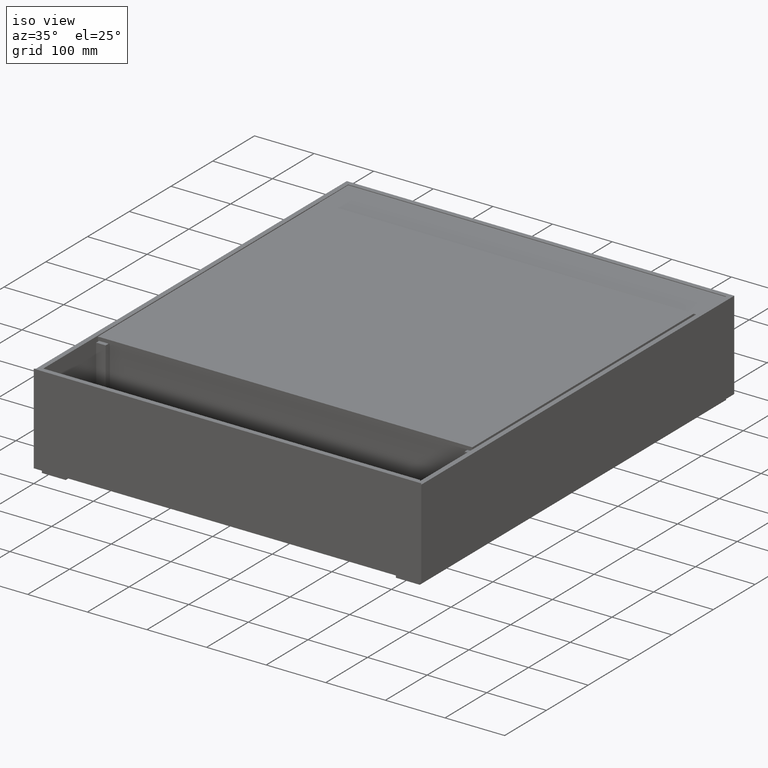
[diagram: clean part render]
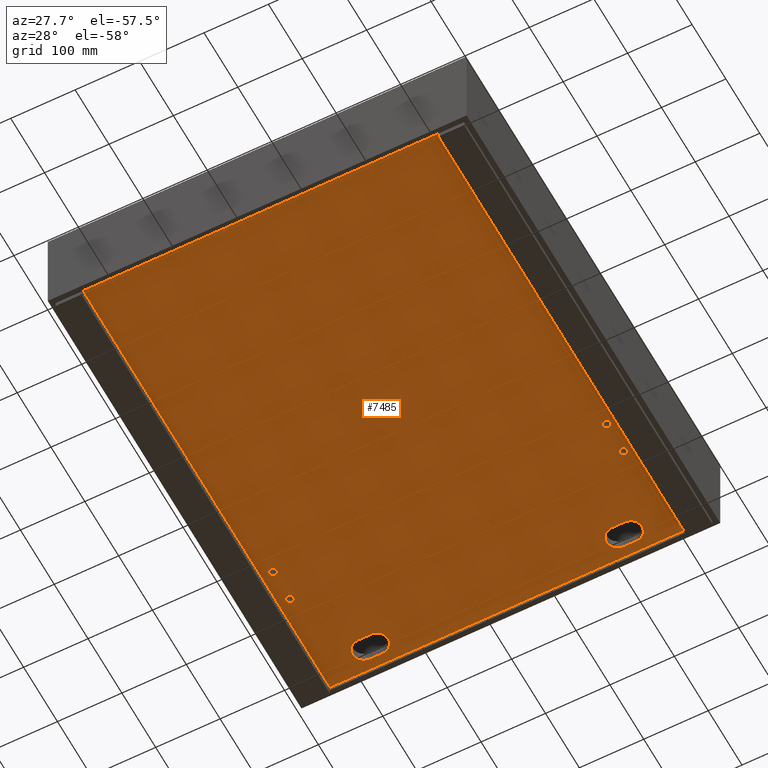
[diagram: tour spotlight — one face highlighted and labeled with its STEP entity id]
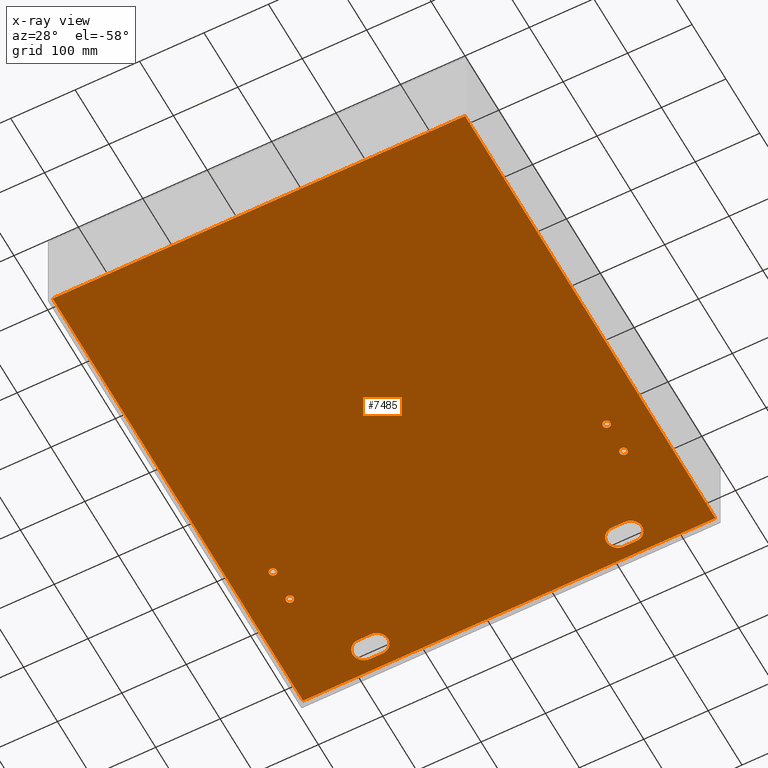
[diagram: x-ray of the same camera — body ghosted, this tour face saturated]
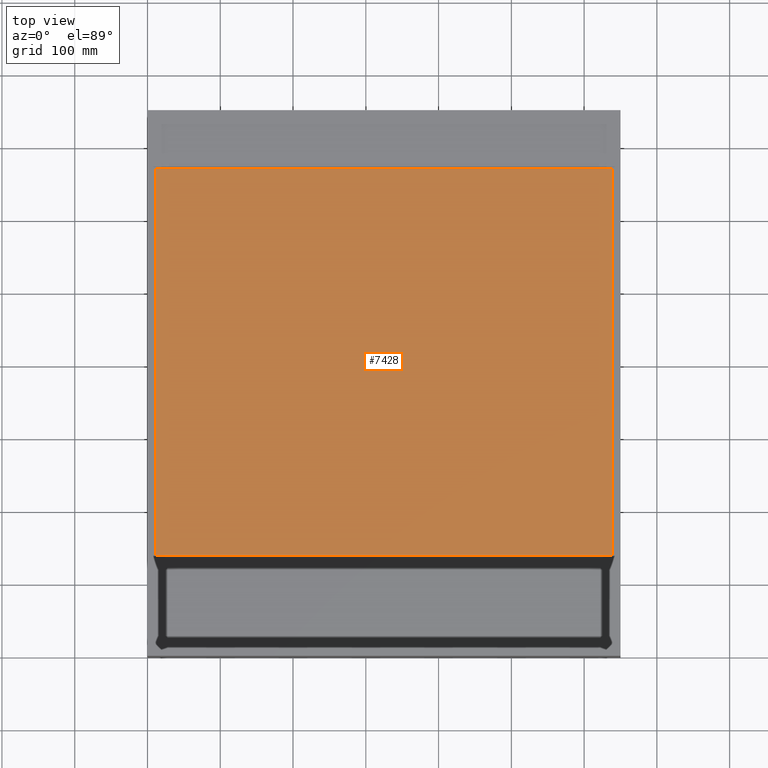
[diagram: tour spotlight — one face highlighted and labeled with its STEP entity id]
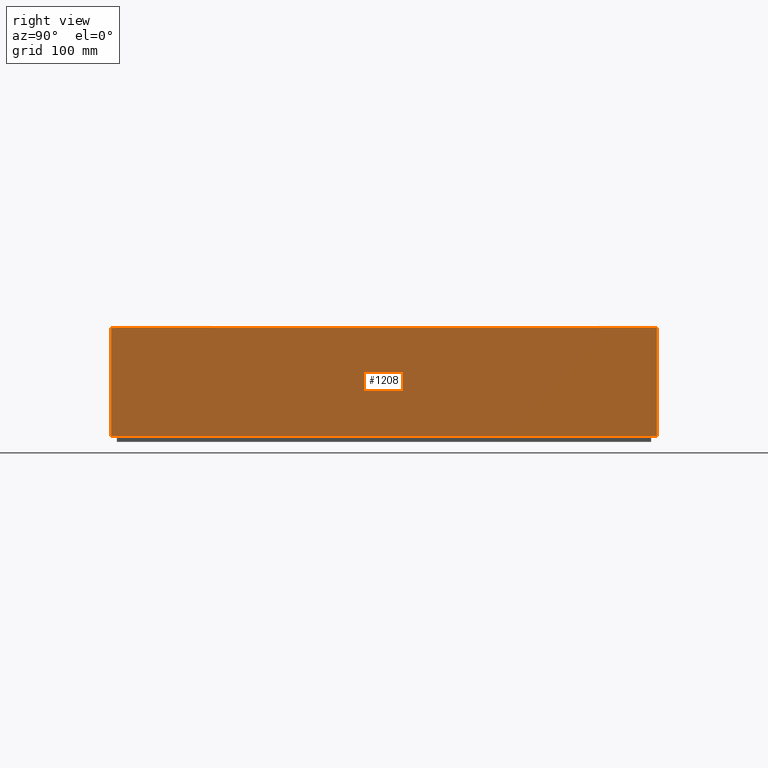
[diagram: tour spotlight — one face highlighted and labeled with its STEP entity id]
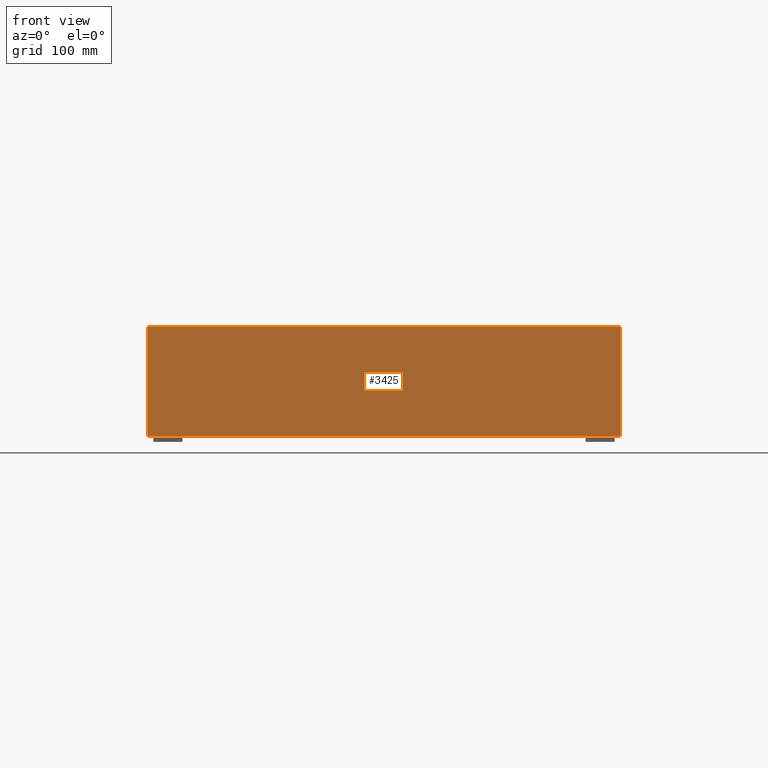
[diagram: tour spotlight — one face highlighted and labeled with its STEP entity id]
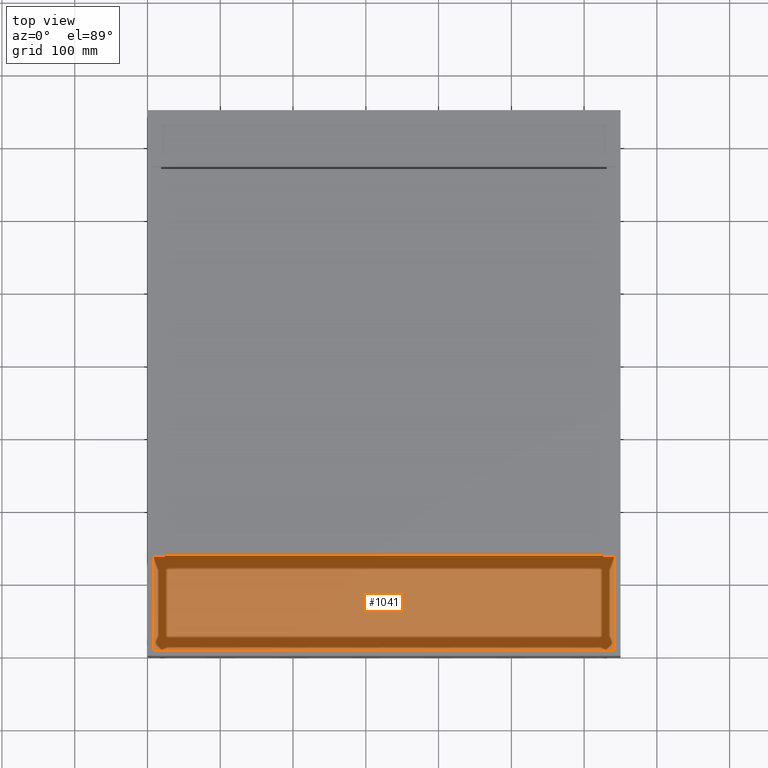
[diagram: tour spotlight — one face highlighted and labeled with its STEP entity id]
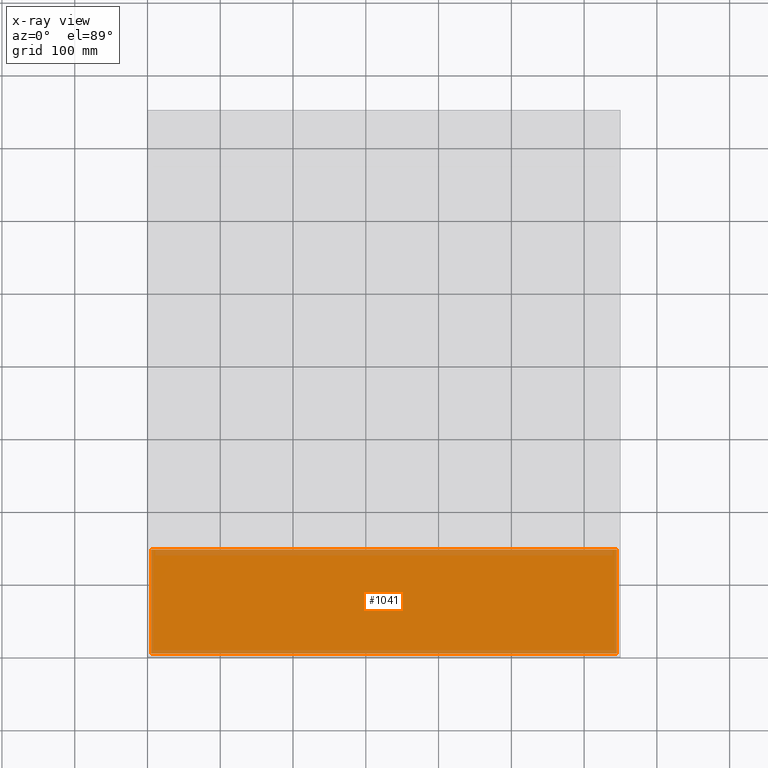
[diagram: x-ray of the same camera — body ghosted, this tour face saturated]
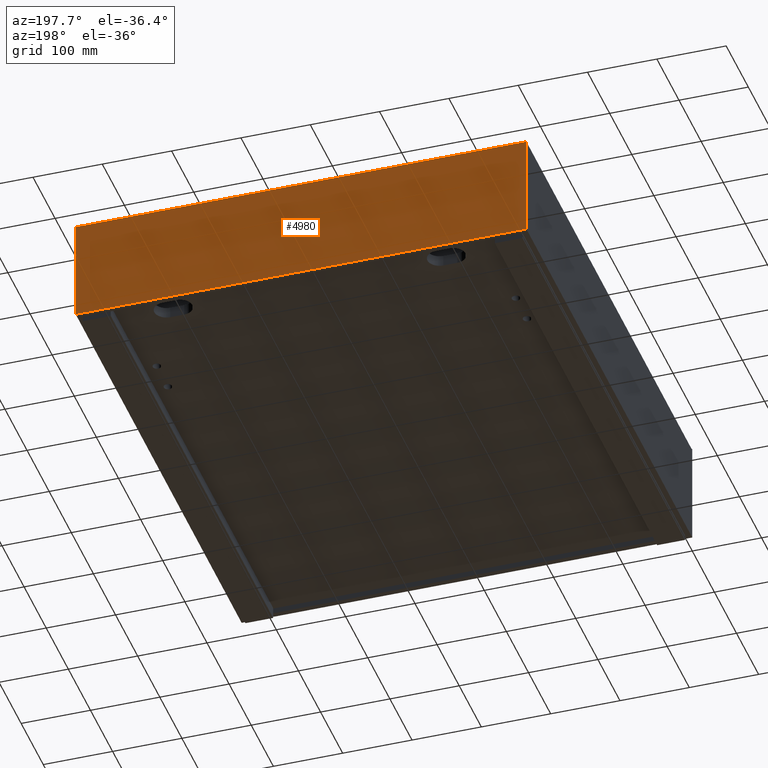
[diagram: tour spotlight — one face highlighted and labeled with its STEP entity id]
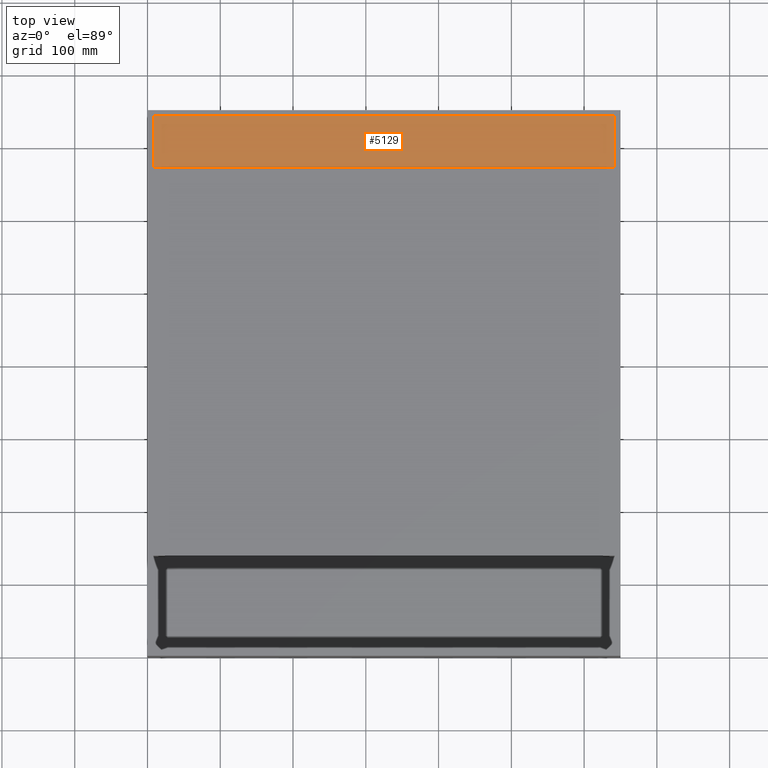
[diagram: tour spotlight — one face highlighted and labeled with its STEP entity id]
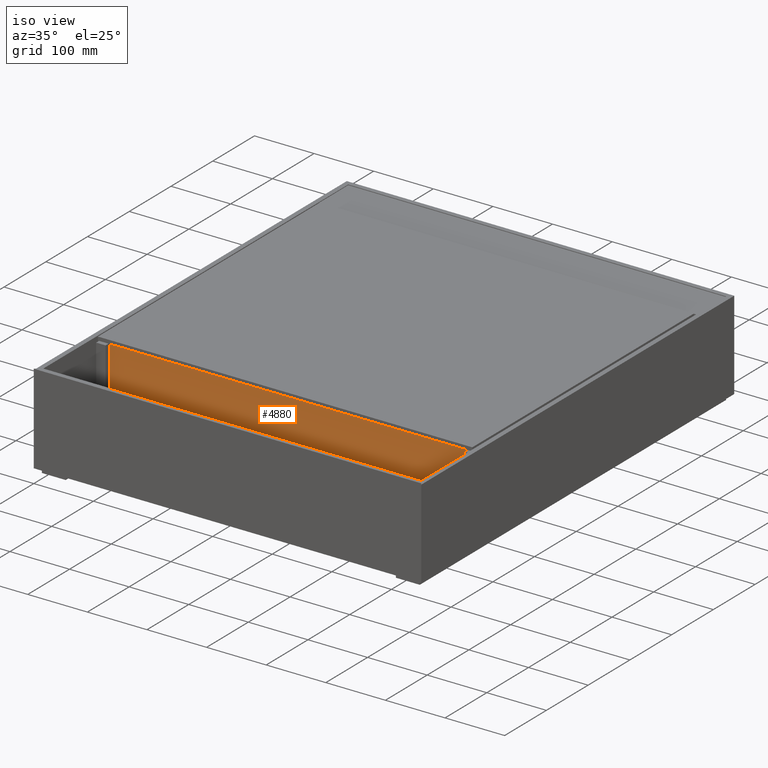
[diagram: tour spotlight — one face highlighted and labeled with its STEP entity id]
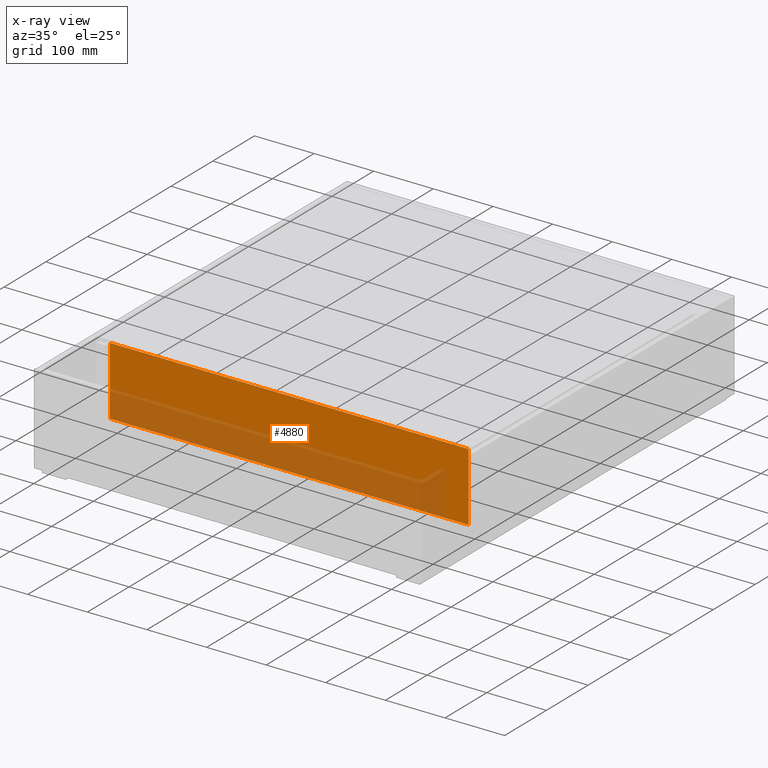
[diagram: x-ray of the same camera — body ghosted, this tour face saturated]
A machine part: a face-by-face anatomy tour. The part has 351 B-rep faces; the first image is the clean iso view, then the 8 largest visible faces are spotlighted one at a time (largest first), each with its STEP entity span.

Face 1 — auxiliary view, entity #7485. An x-ray twin of the same camera follows (body ghosted, this face saturated) — the face is partly hidden behind the body. In plain terms, the highlighted planar face has unit normal (0, -0, 1).
Definition (entity closure, byte-faithful):
#44 = ORIENTED_EDGE ( 'NONE', *, *, #5182, .F. ) ;
#77 = AXIS2_PLACEMENT_3D ( 'NONE', #5783, #9295, #1451 ) ;
#78 = EDGE_CURVE ( 'NONE', #2529, #2361, #1127, .T. ) ;
#87 = LINE ( 'NONE', #3577, #7786 ) ;
#129 = DIRECTION ( 'NONE',  ( -1.423362852083534639E-16, 0.0000000000000000000, -1.000000000000000000 ) ) ;
#136 = EDGE_CURVE ( 'NONE', #1546, #5809, #8702, .T. ) ;
#160 = DIRECTION ( 'NONE',  ( -1.000000000000000000, 0.0000000000000000000, 0.0000000000000000000 ) ) ;
#278 = AXIS2_PLACEMENT_3D ( 'NONE', #7294, #10805, #2951 ) ;
#286 = CARTESIAN_POINT ( 'NONE',  ( 118.0000000000001990, 692.4999000000001388, -141.0000000000002558 ) ) ;
#323 = CARTESIAN_POINT ( 'NONE',  ( 578.0000000000001137, 589.9999000000000251, -141.0000000000002274 ) ) ;
#463 = EDGE_CURVE ( 'NONE', #1731, #6567, #87, .T. ) ;
#559 = EDGE_LOOP ( 'NONE', ( #2628, #2859 ) ) ;
#638 = VERTEX_POINT ( 'NONE', #3907 ) ;
#775 = DIRECTION ( 'NONE',  ( 1.301042606982605074E-16, -0.0000000000000000000, 1.000000000000000000 ) ) ;
#776 = EDGE_CURVE ( 'NONE', #2073, #2334, #8329, .T. ) ;
#801 = ORIENTED_EDGE ( 'NONE', *, *, #3565, .F. ) ;
#825 = VERTEX_POINT ( 'NONE', #4317 ) ;
#878 = AXIS2_PLACEMENT_3D ( 'NONE', #5505, #9008, #1148 ) ;
#881 = ORIENTED_EDGE ( 'NONE', *, *, #3337, .F. ) ;
#882 = EDGE_CURVE ( 'NONE', #10199, #1731, #4848, .T. ) ;
#933 = CARTESIAN_POINT ( 'NONE',  ( 531.9999999999997726, 709.9999000000000251, -141.0000000000003126 ) ) ;
#968 = CARTESIAN_POINT ( 'NONE',  ( 590.0000000000001137, 539.9999000000000251, -141.0000000000002274 ) ) ;
#1081 = DIRECTION ( 'NONE',  ( 0.0000000000000000000, 0.0000000000000000000, -1.000000000000000000 ) ) ;
#1127 = LINE ( 'NONE', #4623, #9621 ) ;
#1148 = DIRECTION ( 'NONE',  ( -1.000000000000000000, 0.0000000000000000000, 0.0000000000000000000 ) ) ;
#1449 = EDGE_CURVE ( 'NONE', #2248, #7735, #10862, .T. ) ;
#1451 = DIRECTION ( 'NONE',  ( -1.000000000000000000, 0.0000000000000000000, 0.0000000000000000000 ) ) ;
#1538 = CARTESIAN_POINT ( 'NONE',  ( 138.0000000000001990, 692.4999000000000251, -141.0000000000002558 ) ) ;
#1546 = VERTEX_POINT ( 'NONE', #323 ) ;
#1572 = CARTESIAN_POINT ( 'NONE',  ( 66.00000000000004263, 539.9999000000000251, -141.0000000000002274 ) ) ;
#1602 = CARTESIAN_POINT ( 'NONE',  ( 5.000000000000021316, 1386.199868759761557, -141.0000000000002274 ) ) ;
#1615 = VERTEX_POINT ( 'NONE', #7472 ) ;
#1644 = FACE_OUTER_BOUND ( 'NONE', #6737, .T. ) ;
#1712 = ORIENTED_EDGE ( 'NONE', *, *, #136, .F. ) ;
#1714 = VERTEX_POINT ( 'NONE', #8795 ) ;
#1720 = EDGE_CURVE ( 'NONE', #6567, #9324, #9227, .T. ) ;
#1731 = VERTEX_POINT ( 'NONE', #3566 ) ;
#1810 = DIRECTION ( 'NONE',  ( -1.000000000000000000, -0.0000000000000000000, -0.0000000000000000000 ) ) ;
#1940 = DIRECTION ( 'NONE',  ( 1.000000000000000000, 0.0000000000000000000, 0.0000000000000000000 ) ) ;
#1948 = EDGE_CURVE ( 'NONE', #5809, #1546, #5019, .T. ) ;
#2030 = AXIS2_PLACEMENT_3D ( 'NONE', #10414, #2556, #6042 ) ;
#2046 = EDGE_LOOP ( 'NONE', ( #44, #801 ) ) ;
#2073 = VERTEX_POINT ( 'NONE', #6021 ) ;
#2131 = CARTESIAN_POINT ( 'NONE',  ( 118.0000000000001990, 727.4999000000001388, -141.0000000000002558 ) ) ;
#2165 = ORIENTED_EDGE ( 'NONE', *, *, #1948, .F. ) ;
#2181 = AXIS2_PLACEMENT_3D ( 'NONE', #8639, #775, #4272 ) ;
#2211 = VECTOR ( 'NONE', #2694, 1000.000000000000000 ) ;
#2248 = VERTEX_POINT ( 'NONE', #8986 ) ;
#2279 = DIRECTION ( 'NONE',  ( 0.0000000000000000000, 0.0000000000000000000, -1.000000000000000000 ) ) ;
#2334 = VERTEX_POINT ( 'NONE', #9161 ) ;
#2361 = VERTEX_POINT ( 'NONE', #10071 ) ;
#2499 = FACE_BOUND ( 'NONE', #9055, .T. ) ;
#2529 = VERTEX_POINT ( 'NONE', #8758 ) ;
#2534 = CIRCLE ( 'NONE', #8934, 6.000000000000005329 ) ;
#2556 = DIRECTION ( 'NONE',  ( -1.423362852083534639E-16, 0.0000000000000000000, -1.000000000000000000 ) ) ;
#2601 = CARTESIAN_POINT ( 'NONE',  ( 5.000000000000021316, 744.9999000000000251, -141.0000000000002274 ) ) ;
#2603 = DIRECTION ( 'NONE',  ( 0.0000000000000000000, 0.0000000000000000000, -1.000000000000000000 ) ) ;
#2628 = ORIENTED_EDGE ( 'NONE', *, *, #776, .F. ) ;
#2688 = EDGE_CURVE ( 'NONE', #8532, #1714, #5225, .T. ) ;
#2694 = DIRECTION ( 'NONE',  ( -1.000000000000000000, -0.0000000000000000000, 1.301042606982605321E-16 ) ) ;
#2697 = CARTESIAN_POINT ( 'NONE',  ( 118.0000000000001990, 709.9999000000000251, -141.0000000000002558 ) ) ;
#2859 = ORIENTED_EDGE ( 'NONE', *, *, #5349, .F. ) ;
#2951 = DIRECTION ( 'NONE',  ( 1.000000000000000000, 0.0000000000000000000, 0.0000000000000000000 ) ) ;
#2964 = DIRECTION ( 'NONE',  ( 0.0000000000000000000, 0.0000000000000000000, -1.000000000000000000 ) ) ;
#3089 = EDGE_CURVE ( 'NONE', #825, #2248, #9981, .T. ) ;
#3262 = CARTESIAN_POINT ( 'NONE',  ( 60.00000000000002842, 589.9999000000000251, -141.0000000000002274 ) ) ;
#3337 = EDGE_CURVE ( 'NONE', #1714, #825, #9993, .T. ) ;
#3340 = AXIS2_PLACEMENT_3D ( 'NONE', #8931, #1081, #4571 ) ;
#3355 = FACE_BOUND ( 'NONE', #8885, .T. ) ;
#3411 = ORIENTED_EDGE ( 'NONE', *, *, #9133, .F. ) ;
#3430 = ORIENTED_EDGE ( 'NONE', *, *, #8408, .F. ) ;
#3565 = EDGE_CURVE ( 'NONE', #10593, #5183, #4319, .T. ) ;
#3566 = CARTESIAN_POINT ( 'NONE',  ( 511.9999999999997726, 727.4999000000001388, -141.0000000000003126 ) ) ;
#3577 = CARTESIAN_POINT ( 'NONE',  ( 531.9999999999997726, 727.4999000000001388, -141.0000000000003126 ) ) ;
#3622 = DIRECTION ( 'NONE',  ( -1.000000000000000000, 0.0000000000000000000, 0.0000000000000000000 ) ) ;
#3686 = ORIENTED_EDGE ( 'NONE', *, *, #10656, .F. ) ;
#3809 = ORIENTED_EDGE ( 'NONE', *, *, #7051, .F. ) ;
#3907 = CARTESIAN_POINT ( 'NONE',  ( 511.9999999999997726, 692.4999000000000251, -141.0000000000003126 ) ) ;
#4010 = CARTESIAN_POINT ( 'NONE',  ( 66.00000000000004263, 589.9999000000000251, -141.0000000000002274 ) ) ;
#4147 = ORIENTED_EDGE ( 'NONE', *, *, #1449, .F. ) ;
#4201 = EDGE_CURVE ( 'NONE', #1615, #2529, #10453, .T. ) ;
#4272 = DIRECTION ( 'NONE',  ( 1.000000000000000000, 0.0000000000000000000, -1.301042606982605074E-16 ) ) ;
#4283 = AXIS2_PLACEMENT_3D ( 'NONE', #933, #4429, #7922 ) ;
#4317 = CARTESIAN_POINT ( 'NONE',  ( 118.0000000000001990, 727.4999000000001388, -141.0000000000002558 ) ) ;
#4319 = CIRCLE ( 'NONE', #10728, 6.000000000000005329 ) ;
#4342 = CARTESIAN_POINT ( 'NONE',  ( 5.000000000000021316, 5.000000000000000000, -141.0000000000002274 ) ) ;
#4429 = DIRECTION ( 'NONE',  ( -1.423362852083534639E-16, 0.0000000000000000000, -1.000000000000000000 ) ) ;
#4457 = AXIS2_PLACEMENT_3D ( 'NONE', #6278, #9796, #1940 ) ;
#4511 = LINE ( 'NONE', #8007, #11318 ) ;
#4544 = ORIENTED_EDGE ( 'NONE', *, *, #882, .F. ) ;
#4571 = DIRECTION ( 'NONE',  ( -1.000000000000000000, 0.0000000000000000000, 0.0000000000000000000 ) ) ;
#4576 = ORIENTED_EDGE ( 'NONE', *, *, #4201, .T. ) ;
#4623 = CARTESIAN_POINT ( 'NONE',  ( 645.0000000000000000, 1386.199868759761557, -141.0000000000003126 ) ) ;
#4848 = CIRCLE ( 'NONE', #9804, 17.49999999999996092 ) ;
#5019 = CIRCLE ( 'NONE', #77, 6.000000000000005329 ) ;
#5046 = AXIS2_PLACEMENT_3D ( 'NONE', #2697, #6178, #9698 ) ;
#5047 = ORIENTED_EDGE ( 'NONE', *, *, #78, .T. ) ;
#5058 = DIRECTION ( 'NONE',  ( 0.0000000000000000000, 0.0000000000000000000, -1.000000000000000000 ) ) ;
#5094 = DIRECTION ( 'NONE',  ( -0.0000000000000000000, -1.000000000000000000, -0.0000000000000000000 ) ) ;
#5137 = PLANE ( 'NONE',  #2181 ) ;
#5182 = EDGE_CURVE ( 'NONE', #5183, #10593, #2534, .T. ) ;
#5183 = VERTEX_POINT ( 'NONE', #9595 ) ;
#5221 = ORIENTED_EDGE ( 'NONE', *, *, #9423, .T. ) ;
#5225 = CIRCLE ( 'NONE', #278, 17.49999999999997513 ) ;
#5349 = EDGE_CURVE ( 'NONE', #2334, #2073, #5807, .T. ) ;
#5505 = CARTESIAN_POINT ( 'NONE',  ( 66.00000000000004263, 539.9999000000000251, -141.0000000000002274 ) ) ;
#5608 = DIRECTION ( 'NONE',  ( 1.000000000000000000, 0.0000000000000000000, 0.0000000000000000000 ) ) ;
#5655 = AXIS2_PLACEMENT_3D ( 'NONE', #4010, #7506, #11006 ) ;
#5753 = AXIS2_PLACEMENT_3D ( 'NONE', #1572, #5058, #8566 ) ;
#5761 = DIRECTION ( 'NONE',  ( -1.000000000000000000, 0.0000000000000000000, 0.0000000000000000000 ) ) ;
#5783 = CARTESIAN_POINT ( 'NONE',  ( 584.0000000000001137, 589.9999000000000251, -141.0000000000002274 ) ) ;
#5807 = CIRCLE ( 'NONE', #878, 6.000000000000019540 ) ;
#5809 = VERTEX_POINT ( 'NONE', #10312 ) ;
#5843 = CARTESIAN_POINT ( 'NONE',  ( 531.9999999999997726, 727.4999000000001388, -141.0000000000003126 ) ) ;
#5898 = VERTEX_POINT ( 'NONE', #4342 ) ;
#5986 = FACE_BOUND ( 'NONE', #559, .T. ) ;
#6021 = CARTESIAN_POINT ( 'NONE',  ( 60.00000000000002842, 539.9999000000000251, -141.0000000000002274 ) ) ;
#6031 = CARTESIAN_POINT ( 'NONE',  ( 494.4999999999998295, 709.9999000000000251, -141.0000000000003126 ) ) ;
#6042 = DIRECTION ( 'NONE',  ( -1.000000000000000000, 0.0000000000000000000, 0.0000000000000000000 ) ) ;
#6083 = DIRECTION ( 'NONE',  ( 1.000000000000000000, 0.0000000000000000000, -1.301042606982605074E-16 ) ) ;
#6084 = DIRECTION ( 'NONE',  ( -1.000000000000000000, 0.0000000000000000000, 0.0000000000000000000 ) ) ;
#6150 = LINE ( 'NONE', #9669, #9349 ) ;
#6178 = DIRECTION ( 'NONE',  ( -1.423362852083534639E-16, 0.0000000000000000000, -1.000000000000000000 ) ) ;
#6278 = CARTESIAN_POINT ( 'NONE',  ( 138.0000000000001990, 709.9999000000000251, -141.0000000000002558 ) ) ;
#6316 = ORIENTED_EDGE ( 'NONE', *, *, #463, .F. ) ;
#6453 = DIRECTION ( 'NONE',  ( -1.000000000000000000, 0.0000000000000000000, 0.0000000000000000000 ) ) ;
#6567 = VERTEX_POINT ( 'NONE', #5843 ) ;
#6737 = EDGE_LOOP ( 'NONE', ( #3809, #4576, #5047, #5221 ) ) ;
#6845 = FACE_BOUND ( 'NONE', #8552, .T. ) ;
#6961 = CIRCLE ( 'NONE', #2030, 17.49999999999996092 ) ;
#6990 = VERTEX_POINT ( 'NONE', #3262 ) ;
#7029 = LINE ( 'NONE', #10542, #2211 ) ;
#7051 = EDGE_CURVE ( 'NONE', #1615, #5898, #9450, .T. ) ;
#7057 = VECTOR ( 'NONE', #6083, 1000.000000000000000 ) ;
#7062 = DIRECTION ( 'NONE',  ( 1.000000000000000000, -0.0000000000000000000, -0.0000000000000000000 ) ) ;
#7199 = EDGE_CURVE ( 'NONE', #9324, #638, #4511, .T. ) ;
#7294 = CARTESIAN_POINT ( 'NONE',  ( 118.0000000000001990, 709.9999000000000251, -141.0000000000002558 ) ) ;
#7472 = CARTESIAN_POINT ( 'NONE',  ( 5.000000000000021316, 744.9999000000000251, -141.0000000000002274 ) ) ;
#7485 = ADVANCED_FACE ( 'NONE', ( #3355, #6845, #10357, #2499, #5986, #9496, #1644 ), #5137, .F. ) ;
#7506 = DIRECTION ( 'NONE',  ( 0.0000000000000000000, 0.0000000000000000000, -1.000000000000000000 ) ) ;
#7698 = ORIENTED_EDGE ( 'NONE', *, *, #2688, .F. ) ;
#7735 = VERTEX_POINT ( 'NONE', #1538 ) ;
#7766 = AXIS2_PLACEMENT_3D ( 'NONE', #10819, #2964, #6453 ) ;
#7783 = VECTOR ( 'NONE', #5608, 1000.000000000000000 ) ;
#7786 = VECTOR ( 'NONE', #7062, 1000.000000000000000 ) ;
#7817 = ORIENTED_EDGE ( 'NONE', *, *, #1720, .F. ) ;
#7922 = DIRECTION ( 'NONE',  ( -1.000000000000000000, 0.0000000000000000000, 0.0000000000000000000 ) ) ;
#7925 = ORIENTED_EDGE ( 'NONE', *, *, #9195, .F. ) ;
#7976 = CARTESIAN_POINT ( 'NONE',  ( 511.9999999999997726, 709.9999000000000251, -141.0000000000003126 ) ) ;
#8007 = CARTESIAN_POINT ( 'NONE',  ( 531.9999999999997726, 692.4999000000001388, -141.0000000000003126 ) ) ;
#8020 = VECTOR ( 'NONE', #5094, 1000.000000000000000 ) ;
#8095 = CARTESIAN_POINT ( 'NONE',  ( 531.9999999999997726, 692.4999000000001388, -141.0000000000002842 ) ) ;
#8114 = DIRECTION ( 'NONE',  ( -0.0000000000000000000, -1.000000000000000000, -0.0000000000000000000 ) ) ;
#8268 = CIRCLE ( 'NONE', #3340, 6.000000000000019540 ) ;
#8329 = CIRCLE ( 'NONE', #5753, 6.000000000000019540 ) ;
#8408 = EDGE_CURVE ( 'NONE', #6990, #10205, #10617, .T. ) ;
#8532 = VERTEX_POINT ( 'NONE', #286 ) ;
#8552 = EDGE_LOOP ( 'NONE', ( #11256, #881, #7698, #7925, #4147 ) ) ;
#8566 = DIRECTION ( 'NONE',  ( -1.000000000000000000, 0.0000000000000000000, 0.0000000000000000000 ) ) ;
#8639 = CARTESIAN_POINT ( 'NONE',  ( 5.000000000000021316, 1386.199868759761557, -141.0000000000002274 ) ) ;
#8702 = CIRCLE ( 'NONE', #7766, 6.000000000000005329 ) ;
#8758 = CARTESIAN_POINT ( 'NONE',  ( 645.0000000000000000, 744.9999000000000251, -141.0000000000003126 ) ) ;
#8795 = CARTESIAN_POINT ( 'NONE',  ( 100.5000000000002416, 709.9999000000000251, -141.0000000000002558 ) ) ;
#8885 = EDGE_LOOP ( 'NONE', ( #10741, #7817, #6316, #4544, #3411 ) ) ;
#8931 = CARTESIAN_POINT ( 'NONE',  ( 66.00000000000004263, 589.9999000000000251, -141.0000000000002274 ) ) ;
#8934 = AXIS2_PLACEMENT_3D ( 'NONE', #10454, #2603, #6084 ) ;
#8986 = CARTESIAN_POINT ( 'NONE',  ( 138.0000000000001990, 727.4999000000001388, -141.0000000000002558 ) ) ;
#9008 = DIRECTION ( 'NONE',  ( 0.0000000000000000000, 0.0000000000000000000, -1.000000000000000000 ) ) ;
#9055 = EDGE_LOOP ( 'NONE', ( #1712, #2165 ) ) ;
#9133 = EDGE_CURVE ( 'NONE', #638, #10199, #6961, .T. ) ;
#9161 = CARTESIAN_POINT ( 'NONE',  ( 72.00000000000005684, 539.9999000000000251, -141.0000000000002274 ) ) ;
#9195 = EDGE_CURVE ( 'NONE', #7735, #8532, #6150, .T. ) ;
#9227 = CIRCLE ( 'NONE', #4283, 17.49999999999996092 ) ;
#9295 = DIRECTION ( 'NONE',  ( 0.0000000000000000000, 0.0000000000000000000, -1.000000000000000000 ) ) ;
#9324 = VERTEX_POINT ( 'NONE', #8095 ) ;
#9349 = VECTOR ( 'NONE', #1810, 1000.000000000000000 ) ;
#9423 = EDGE_CURVE ( 'NONE', #2361, #5898, #7029, .T. ) ;
#9450 = LINE ( 'NONE', #1602, #8020 ) ;
#9496 = FACE_BOUND ( 'NONE', #10585, .T. ) ;
#9545 = CARTESIAN_POINT ( 'NONE',  ( 72.00000000000005684, 589.9999000000000251, -141.0000000000002274 ) ) ;
#9595 = CARTESIAN_POINT ( 'NONE',  ( 578.0000000000001137, 539.9999000000000251, -141.0000000000002274 ) ) ;
#9621 = VECTOR ( 'NONE', #8114, 1000.000000000000000 ) ;
#9669 = CARTESIAN_POINT ( 'NONE',  ( 118.0000000000001990, 692.4999000000001388, -141.0000000000002558 ) ) ;
#9698 = DIRECTION ( 'NONE',  ( 1.000000000000000000, 0.0000000000000000000, 0.0000000000000000000 ) ) ;
#9796 = DIRECTION ( 'NONE',  ( -1.423362852083534639E-16, 0.0000000000000000000, -1.000000000000000000 ) ) ;
#9804 = AXIS2_PLACEMENT_3D ( 'NONE', #7976, #129, #3622 ) ;
#9981 = LINE ( 'NONE', #2131, #7783 ) ;
#9993 = CIRCLE ( 'NONE', #5046, 17.49999999999997513 ) ;
#10071 = CARTESIAN_POINT ( 'NONE',  ( 645.0000000000000000, 5.000000000000000000, -141.0000000000003126 ) ) ;
#10134 = CARTESIAN_POINT ( 'NONE',  ( 584.0000000000001137, 539.9999000000000251, -141.0000000000002274 ) ) ;
#10199 = VERTEX_POINT ( 'NONE', #6031 ) ;
#10205 = VERTEX_POINT ( 'NONE', #9545 ) ;
#10312 = CARTESIAN_POINT ( 'NONE',  ( 590.0000000000001137, 589.9999000000000251, -141.0000000000002274 ) ) ;
#10357 = FACE_BOUND ( 'NONE', #2046, .T. ) ;
#10414 = CARTESIAN_POINT ( 'NONE',  ( 511.9999999999997726, 709.9999000000000251, -141.0000000000003126 ) ) ;
#10453 = LINE ( 'NONE', #2601, #7057 ) ;
#10454 = CARTESIAN_POINT ( 'NONE',  ( 584.0000000000001137, 539.9999000000000251, -141.0000000000002274 ) ) ;
#10542 = CARTESIAN_POINT ( 'NONE',  ( 5.000000000000021316, 5.000000000000000000, -141.0000000000002274 ) ) ;
#10585 = EDGE_LOOP ( 'NONE', ( #3430, #3686 ) ) ;
#10593 = VERTEX_POINT ( 'NONE', #968 ) ;
#10617 = CIRCLE ( 'NONE', #5655, 6.000000000000019540 ) ;
#10656 = EDGE_CURVE ( 'NONE', #10205, #6990, #8268, .T. ) ;
#10728 = AXIS2_PLACEMENT_3D ( 'NONE', #10134, #2279, #5761 ) ;
#10741 = ORIENTED_EDGE ( 'NONE', *, *, #7199, .F. ) ;
#10805 = DIRECTION ( 'NONE',  ( -1.423362852083534639E-16, 0.0000000000000000000, -1.000000000000000000 ) ) ;
#10819 = CARTESIAN_POINT ( 'NONE',  ( 584.0000000000001137, 589.9999000000000251, -141.0000000000002274 ) ) ;
#10862 = CIRCLE ( 'NONE', #4457, 17.49999999999996092 ) ;
#11006 = DIRECTION ( 'NONE',  ( -1.000000000000000000, 0.0000000000000000000, 0.0000000000000000000 ) ) ;
#11256 = ORIENTED_EDGE ( 'NONE', *, *, #3089, .F. ) ;
#11318 = VECTOR ( 'NONE', #160, 1000.000000000000000 ) ;

Face 2 — top view, entity #7428. In plain terms, the highlighted planar face has unit normal (-0, 0, 1).
Definition (entity closure, byte-faithful):
#167 = CARTESIAN_POINT ( 'NONE',  ( 639.0000000000000000, 668.9999000000001388, 6.071532165918824830E-14 ) ) ;
#758 = EDGE_CURVE ( 'NONE', #8174, #5531, #4140, .T. ) ;
#1313 = ORIENTED_EDGE ( 'NONE', *, *, #3206, .T. ) ;
#1527 = DIRECTION ( 'NONE',  ( 1.000000000000000000, 0.0000000000000000000, 0.0000000000000000000 ) ) ;
#2144 = LINE ( 'NONE', #5622, #5778 ) ;
#2197 = EDGE_CURVE ( 'NONE', #5531, #7118, #8011, .T. ) ;
#2287 = EDGE_LOOP ( 'NONE', ( #1313, #9235, #11127, #5107 ) ) ;
#2385 = PLANE ( 'NONE',  #2723 ) ;
#2575 = CARTESIAN_POINT ( 'NONE',  ( 639.0000000000000000, 668.9999000000001388, 6.071532165918824830E-14 ) ) ;
#2723 = AXIS2_PLACEMENT_3D ( 'NONE', #5870, #9376, #1527 ) ;
#3206 = EDGE_CURVE ( 'NONE', #11014, #8174, #3208, .T. ) ;
#3208 = LINE ( 'NONE', #6696, #8145 ) ;
#3403 = VECTOR ( 'NONE', #11137, 1000.000000000000000 ) ;
#3656 = DIRECTION ( 'NONE',  ( -2.090815882686901485E-16, 1.000000000000000000, -0.0000000000000000000 ) ) ;
#4017 = EDGE_CURVE ( 'NONE', #7118, #11014, #2144, .T. ) ;
#4140 = LINE ( 'NONE', #7637, #3403 ) ;
#4930 = CARTESIAN_POINT ( 'NONE',  ( 639.0000000000001137, 137.9999999999999716, 6.071532165918824830E-14 ) ) ;
#5107 = ORIENTED_EDGE ( 'NONE', *, *, #4017, .T. ) ;
#5253 = CARTESIAN_POINT ( 'NONE',  ( 11.00000000000001954, 668.9999000000001388, 6.071532165918824830E-14 ) ) ;
#5531 = VERTEX_POINT ( 'NONE', #4930 ) ;
#5622 = CARTESIAN_POINT ( 'NONE',  ( 11.00000000000001954, 668.9999000000001388, 6.071532165918824830E-14 ) ) ;
#5741 = VECTOR ( 'NONE', #3656, 1000.000000000000000 ) ;
#5778 = VECTOR ( 'NONE', #9137, 1000.000000000000000 ) ;
#5870 = CARTESIAN_POINT ( 'NONE',  ( 0.0000000000000000000, 0.0000000000000000000, 6.071532165918824830E-14 ) ) ;
#6696 = CARTESIAN_POINT ( 'NONE',  ( 11.00000000000001954, 668.9999000000001388, 6.071532165918824830E-14 ) ) ;
#6787 = CARTESIAN_POINT ( 'NONE',  ( 11.00000000000008349, 137.9999999999999716, 6.071532165918824830E-14 ) ) ;
#7118 = VERTEX_POINT ( 'NONE', #2575 ) ;
#7428 = ADVANCED_FACE ( 'NONE', ( #10248 ), #2385, .T. ) ;
#7637 = CARTESIAN_POINT ( 'NONE',  ( 11.00000000000008349, 137.9999999999999716, 6.071532165918824830E-14 ) ) ;
#8011 = LINE ( 'NONE', #167, #5741 ) ;
#8145 = VECTOR ( 'NONE', #10208, 1000.000000000000000 ) ;
#8174 = VERTEX_POINT ( 'NONE', #6787 ) ;
#9137 = DIRECTION ( 'NONE',  ( -1.000000000000000000, -0.0000000000000000000, -0.0000000000000000000 ) ) ;
#9235 = ORIENTED_EDGE ( 'NONE', *, *, #758, .T. ) ;
#9376 = DIRECTION ( 'NONE',  ( -0.0000000000000000000, 0.0000000000000000000, 1.000000000000000000 ) ) ;
#10208 = DIRECTION ( 'NONE',  ( 1.208752932178364925E-16, -1.000000000000000000, 0.0000000000000000000 ) ) ;
#10248 = FACE_OUTER_BOUND ( 'NONE', #2287, .T. ) ;
#11014 = VERTEX_POINT ( 'NONE', #5253 ) ;
#11127 = ORIENTED_EDGE ( 'NONE', *, *, #2197, .T. ) ;
#11137 = DIRECTION ( 'NONE',  ( 1.000000000000000000, 0.0000000000000000000, 0.0000000000000000000 ) ) ;

Face 3 — right view, entity #1208. In plain terms, the highlighted planar face has unit normal (-1, 0, 0).
Definition (entity closure, byte-faithful):
#434 = CARTESIAN_POINT ( 'NONE',  ( 650.0000000000000000, 750.0000000000000000, -1.000000000000000888 ) ) ;
#459 = CARTESIAN_POINT ( 'NONE',  ( 650.0000000000000000, 899.2146105446780666, -149.9999999999999716 ) ) ;
#550 = VERTEX_POINT ( 'NONE', #4665 ) ;
#589 = CARTESIAN_POINT ( 'NONE',  ( 650.0000000000000000, 0.0000000000000000000, -149.9999999999999716 ) ) ;
#1208 = ADVANCED_FACE ( 'NONE', ( #3999 ), #7492, .F. ) ;
#1215 = VECTOR ( 'NONE', #1568, 1000.000000000000000 ) ;
#1508 = VECTOR ( 'NONE', #5212, 1000.000000000000000 ) ;
#1568 = DIRECTION ( 'NONE',  ( 0.0000000000000000000, 0.0000000000000000000, -1.000000000000000000 ) ) ;
#1721 = CARTESIAN_POINT ( 'NONE',  ( 650.0000000000000000, 899.2146105446780666, -1.000000000000000888 ) ) ;
#2346 = VERTEX_POINT ( 'NONE', #434 ) ;
#3141 = DIRECTION ( 'NONE',  ( -1.000000000000000000, 0.0000000000000000000, 0.0000000000000000000 ) ) ;
#3479 = CARTESIAN_POINT ( 'NONE',  ( 650.0000000000000000, 750.0000000000000000, -1.000000000000000888 ) ) ;
#3955 = DIRECTION ( 'NONE',  ( -0.0000000000000000000, -1.000000000000000000, -0.0000000000000000000 ) ) ;
#3999 = FACE_OUTER_BOUND ( 'NONE', #11186, .T. ) ;
#4136 = EDGE_CURVE ( 'NONE', #550, #5033, #5906, .T. ) ;
#4165 = VECTOR ( 'NONE', #3955, 1000.000000000000000 ) ;
#4443 = CARTESIAN_POINT ( 'NONE',  ( 650.0000000000000000, 750.0000000000000000, -149.9999999999999716 ) ) ;
#4665 = CARTESIAN_POINT ( 'NONE',  ( 650.0000000000000000, 0.0000000000000000000, -1.000000000000000888 ) ) ;
#4681 = ORIENTED_EDGE ( 'NONE', *, *, #10545, .T. ) ;
#5033 = VERTEX_POINT ( 'NONE', #589 ) ;
#5212 = DIRECTION ( 'NONE',  ( -0.0000000000000000000, -1.000000000000000000, -0.0000000000000000000 ) ) ;
#5906 = LINE ( 'NONE', #9413, #1215 ) ;
#6478 = EDGE_CURVE ( 'NONE', #11065, #5033, #8310, .T. ) ;
#6629 = DIRECTION ( 'NONE',  ( 0.0000000000000000000, 0.0000000000000000000, 1.000000000000000000 ) ) ;
#6964 = DIRECTION ( 'NONE',  ( 0.0000000000000000000, 0.0000000000000000000, -1.000000000000000000 ) ) ;
#7492 = PLANE ( 'NONE',  #8116 ) ;
#7820 = ORIENTED_EDGE ( 'NONE', *, *, #6478, .F. ) ;
#8116 = AXIS2_PLACEMENT_3D ( 'NONE', #10995, #3141, #6629 ) ;
#8310 = LINE ( 'NONE', #459, #4165 ) ;
#9413 = CARTESIAN_POINT ( 'NONE',  ( 650.0000000000000000, 0.0000000000000000000, -1.000000000000000888 ) ) ;
#9493 = ORIENTED_EDGE ( 'NONE', *, *, #9797, .F. ) ;
#9555 = ORIENTED_EDGE ( 'NONE', *, *, #4136, .T. ) ;
#9578 = LINE ( 'NONE', #1721, #1508 ) ;
#9797 = EDGE_CURVE ( 'NONE', #2346, #11065, #11326, .T. ) ;
#10545 = EDGE_CURVE ( 'NONE', #2346, #550, #9578, .T. ) ;
#10995 = CARTESIAN_POINT ( 'NONE',  ( 650.0000000000000000, 899.2146105446780666, -1.000000000000000888 ) ) ;
#11065 = VERTEX_POINT ( 'NONE', #4443 ) ;
#11186 = EDGE_LOOP ( 'NONE', ( #9493, #4681, #9555, #7820 ) ) ;
#11189 = VECTOR ( 'NONE', #6964, 1000.000000000000000 ) ;
#11326 = LINE ( 'NONE', #3479, #11189 ) ;

Face 4 — front view, entity #3425. In plain terms, the highlighted planar face has unit normal (0, 1, 0).
Definition (entity closure, byte-faithful):
#170 = CARTESIAN_POINT ( 'NONE',  ( 0.0000000000000000000, 0.0000000000000000000, 1.000000000000000000 ) ) ;
#206 = ORIENTED_EDGE ( 'NONE', *, *, #4027, .F. ) ;
#310 = LINE ( 'NONE', #3800, #4597 ) ;
#408 = DIRECTION ( 'NONE',  ( 0.0000000000000000000, 0.0000000000000000000, 1.000000000000000000 ) ) ;
#843 = VECTOR ( 'NONE', #408, 1000.000000000000000 ) ;
#1028 = AXIS2_PLACEMENT_3D ( 'NONE', #5491, #8989, #1132 ) ;
#1040 = CARTESIAN_POINT ( 'NONE',  ( 0.0000000000000000000, 0.0000000000000000000, 1.000000000000000000 ) ) ;
#1090 = VERTEX_POINT ( 'NONE', #5497 ) ;
#1132 = DIRECTION ( 'NONE',  ( 0.0000000000000000000, -0.0000000000000000000, 1.000000000000000000 ) ) ;
#1337 = VERTEX_POINT ( 'NONE', #6922 ) ;
#1816 = ORIENTED_EDGE ( 'NONE', *, *, #9973, .F. ) ;
#1871 = ORIENTED_EDGE ( 'NONE', *, *, #5106, .F. ) ;
#2002 = PLANE ( 'NONE',  #1028 ) ;
#3284 = LINE ( 'NONE', #6774, #8571 ) ;
#3425 = ADVANCED_FACE ( 'NONE', ( #9855 ), #2002, .F. ) ;
#3542 = VERTEX_POINT ( 'NONE', #9215 ) ;
#3800 = CARTESIAN_POINT ( 'NONE',  ( 0.0000000000000000000, 0.0000000000000000000, -150.0000000000000000 ) ) ;
#4027 = EDGE_CURVE ( 'NONE', #3542, #4683, #4773, .T. ) ;
#4070 = ORIENTED_EDGE ( 'NONE', *, *, #5293, .F. ) ;
#4535 = DIRECTION ( 'NONE',  ( 1.000000000000000000, 0.0000000000000000000, 0.0000000000000000000 ) ) ;
#4597 = VECTOR ( 'NONE', #7293, 1000.000000000000000 ) ;
#4683 = VERTEX_POINT ( 'NONE', #170 ) ;
#4773 = LINE ( 'NONE', #8265, #843 ) ;
#5106 = EDGE_CURVE ( 'NONE', #1090, #1337, #3284, .T. ) ;
#5293 = EDGE_CURVE ( 'NONE', #4683, #1090, #8894, .T. ) ;
#5491 = CARTESIAN_POINT ( 'NONE',  ( 0.0000000000000000000, 0.0000000000000000000, 0.0000000000000000000 ) ) ;
#5497 = CARTESIAN_POINT ( 'NONE',  ( 650.0000000000000000, 0.0000000000000000000, 1.000000000000000000 ) ) ;
#6252 = EDGE_LOOP ( 'NONE', ( #206, #1816, #1871, #4070 ) ) ;
#6774 = CARTESIAN_POINT ( 'NONE',  ( 650.0000000000000000, 0.0000000000000000000, -150.0000000000000000 ) ) ;
#6922 = CARTESIAN_POINT ( 'NONE',  ( 650.0000000000000000, 0.0000000000000000000, -150.0000000000000000 ) ) ;
#7293 = DIRECTION ( 'NONE',  ( -1.000000000000000000, -0.0000000000000000000, -0.0000000000000000000 ) ) ;
#8265 = CARTESIAN_POINT ( 'NONE',  ( 0.0000000000000000000, 0.0000000000000000000, -150.0000000000000000 ) ) ;
#8571 = VECTOR ( 'NONE', #10287, 1000.000000000000000 ) ;
#8894 = LINE ( 'NONE', #1040, #11314 ) ;
#8989 = DIRECTION ( 'NONE',  ( 0.0000000000000000000, 1.000000000000000000, 0.0000000000000000000 ) ) ;
#9215 = CARTESIAN_POINT ( 'NONE',  ( 0.0000000000000000000, 0.0000000000000000000, -150.0000000000000000 ) ) ;
#9855 = FACE_OUTER_BOUND ( 'NONE', #6252, .T. ) ;
#9973 = EDGE_CURVE ( 'NONE', #1337, #3542, #310, .T. ) ;
#10287 = DIRECTION ( 'NONE',  ( -0.0000000000000000000, -0.0000000000000000000, -1.000000000000000000 ) ) ;
#11314 = VECTOR ( 'NONE', #4535, 1000.000000000000000 ) ;

Face 5 — top view, entity #1041. An x-ray twin of the same camera follows (body ghosted, this face saturated) — the face is partly hidden behind the body. In plain terms, the highlighted planar face has unit normal (0, 0, -1).
Definition (entity closure, byte-faithful):
#404 = CARTESIAN_POINT ( 'NONE',  ( 5.000000000000004441, 148.0000000000000284, -116.0000000000000284 ) ) ;
#786 = LINE ( 'NONE', #4289, #6006 ) ;
#927 = VERTEX_POINT ( 'NONE', #404 ) ;
#958 = VERTEX_POINT ( 'NONE', #5844 ) ;
#1041 = ADVANCED_FACE ( 'NONE', ( #10614 ), #2759, .F. ) ;
#1315 = VECTOR ( 'NONE', #1743, 1000.000000000000000 ) ;
#1543 = AXIS2_PLACEMENT_3D ( 'NONE', #6243, #9757, #1898 ) ;
#1580 = LINE ( 'NONE', #5070, #8371 ) ;
#1743 = DIRECTION ( 'NONE',  ( -0.0000000000000000000, -1.000000000000000000, -0.0000000000000000000 ) ) ;
#1898 = DIRECTION ( 'NONE',  ( -1.000000000000000000, 0.0000000000000000000, -0.0000000000000000000 ) ) ;
#2347 = ORIENTED_EDGE ( 'NONE', *, *, #6268, .T. ) ;
#2759 = PLANE ( 'NONE',  #1543 ) ;
#3321 = DIRECTION ( 'NONE',  ( -0.0000000000000000000, -1.000000000000000000, -0.0000000000000000000 ) ) ;
#4289 = CARTESIAN_POINT ( 'NONE',  ( 5.000000000000004441, 148.0000000000000284, -116.0000000000000284 ) ) ;
#4864 = VERTEX_POINT ( 'NONE', #10680 ) ;
#5070 = CARTESIAN_POINT ( 'NONE',  ( 5.000000000000004441, 5.000000000000000000, -116.0000000000000284 ) ) ;
#5844 = CARTESIAN_POINT ( 'NONE',  ( 5.000000000000004441, 5.000000000000000000, -116.0000000000000284 ) ) ;
#6006 = VECTOR ( 'NONE', #7778, 1000.000000000000000 ) ;
#6089 = LINE ( 'NONE', #9600, #1315 ) ;
#6243 = CARTESIAN_POINT ( 'NONE',  ( 5.000000000000004441, 788.0632781217807405, -116.0000000000000284 ) ) ;
#6268 = EDGE_CURVE ( 'NONE', #958, #4864, #1580, .T. ) ;
#6549 = VECTOR ( 'NONE', #3321, 1000.000000000000000 ) ;
#7035 = EDGE_CURVE ( 'NONE', #927, #958, #7671, .T. ) ;
#7107 = EDGE_CURVE ( 'NONE', #927, #8398, #786, .T. ) ;
#7671 = LINE ( 'NONE', #11166, #6549 ) ;
#7778 = DIRECTION ( 'NONE',  ( 1.000000000000000000, -0.0000000000000000000, 0.0000000000000000000 ) ) ;
#7957 = EDGE_LOOP ( 'NONE', ( #10145, #11054, #2347, #10268 ) ) ;
#8371 = VECTOR ( 'NONE', #8577, 1000.000000000000000 ) ;
#8398 = VERTEX_POINT ( 'NONE', #9231 ) ;
#8577 = DIRECTION ( 'NONE',  ( 1.000000000000000000, 0.0000000000000000000, 0.0000000000000000000 ) ) ;
#9231 = CARTESIAN_POINT ( 'NONE',  ( 645.0000000000000000, 148.0000000000000284, -116.0000000000000284 ) ) ;
#9600 = CARTESIAN_POINT ( 'NONE',  ( 645.0000000000000000, 788.0632781217807405, -116.0000000000000284 ) ) ;
#9757 = DIRECTION ( 'NONE',  ( 0.0000000000000000000, 0.0000000000000000000, -1.000000000000000000 ) ) ;
#10145 = ORIENTED_EDGE ( 'NONE', *, *, #7107, .F. ) ;
#10236 = EDGE_CURVE ( 'NONE', #8398, #4864, #6089, .T. ) ;
#10268 = ORIENTED_EDGE ( 'NONE', *, *, #10236, .F. ) ;
#10614 = FACE_OUTER_BOUND ( 'NONE', #7957, .T. ) ;
#10680 = CARTESIAN_POINT ( 'NONE',  ( 645.0000000000000000, 5.000000000000000000, -116.0000000000000284 ) ) ;
#11054 = ORIENTED_EDGE ( 'NONE', *, *, #7035, .T. ) ;
#11166 = CARTESIAN_POINT ( 'NONE',  ( 5.000000000000004441, 788.0632781217807405, -116.0000000000000284 ) ) ;

Face 6 — auxiliary view, entity #4980. In plain terms, the highlighted planar face has unit normal (0, 1, 0).
Definition (entity closure, byte-faithful):
#685 = ORIENTED_EDGE ( 'NONE', *, *, #5457, .T. ) ;
#977 = VERTEX_POINT ( 'NONE', #1619 ) ;
#1249 = CARTESIAN_POINT ( 'NONE',  ( 0.0000000000000000000, 749.9999000000000251, -150.0000000000000000 ) ) ;
#1324 = CARTESIAN_POINT ( 'NONE',  ( 650.0000000000000000, 749.9999000000000251, -150.0000000000000000 ) ) ;
#1336 = CARTESIAN_POINT ( 'NONE',  ( 0.0000000000000000000, 749.9999000000000251, 0.0000000000000000000 ) ) ;
#1380 = CARTESIAN_POINT ( 'NONE',  ( 650.0000000000000000, 749.9999000000000251, -1.000000000000000888 ) ) ;
#1619 = CARTESIAN_POINT ( 'NONE',  ( 0.0000000000000000000, 749.9999000000000251, -150.0000000000000000 ) ) ;
#1975 = EDGE_LOOP ( 'NONE', ( #8656, #10319, #685, #6814 ) ) ;
#2839 = DIRECTION ( 'NONE',  ( -1.000000000000000000, -0.0000000000000000000, -0.0000000000000000000 ) ) ;
#2930 = DIRECTION ( 'NONE',  ( 1.000000000000000000, 0.0000000000000000000, 0.0000000000000000000 ) ) ;
#3038 = EDGE_CURVE ( 'NONE', #9352, #4466, #7275, .T. ) ;
#3401 = VECTOR ( 'NONE', #2930, 1000.000000000000000 ) ;
#3466 = EDGE_CURVE ( 'NONE', #977, #9352, #9107, .T. ) ;
#3503 = VECTOR ( 'NONE', #2839, 1000.000000000000000 ) ;
#4466 = VERTEX_POINT ( 'NONE', #1380 ) ;
#4721 = VECTOR ( 'NONE', #4815, 1000.000000000000000 ) ;
#4745 = DIRECTION ( 'NONE',  ( 1.224646799147353207E-16, 0.0000000000000000000, 1.000000000000000000 ) ) ;
#4815 = DIRECTION ( 'NONE',  ( -0.0000000000000000000, -0.0000000000000000000, -1.000000000000000000 ) ) ;
#4826 = DIRECTION ( 'NONE',  ( 0.0000000000000000000, 1.000000000000000000, 0.0000000000000000000 ) ) ;
#4980 = ADVANCED_FACE ( 'NONE', ( #5680 ), #9192, .T. ) ;
#5457 = EDGE_CURVE ( 'NONE', #4466, #7666, #9180, .T. ) ;
#5680 = FACE_OUTER_BOUND ( 'NONE', #1975, .T. ) ;
#6814 = ORIENTED_EDGE ( 'NONE', *, *, #11129, .T. ) ;
#6876 = VECTOR ( 'NONE', #4745, 1000.000000000000000 ) ;
#7179 = LINE ( 'NONE', #10689, #3503 ) ;
#7235 = CARTESIAN_POINT ( 'NONE',  ( 650.0000000000000000, 749.9999000000000251, -150.0000000000000000 ) ) ;
#7275 = LINE ( 'NONE', #10787, #3401 ) ;
#7666 = VERTEX_POINT ( 'NONE', #7235 ) ;
#8191 = AXIS2_PLACEMENT_3D ( 'NONE', #1336, #4826, #8319 ) ;
#8319 = DIRECTION ( 'NONE',  ( 0.0000000000000000000, -0.0000000000000000000, 1.000000000000000000 ) ) ;
#8656 = ORIENTED_EDGE ( 'NONE', *, *, #3466, .T. ) ;
#9107 = LINE ( 'NONE', #1249, #6876 ) ;
#9180 = LINE ( 'NONE', #1324, #4721 ) ;
#9192 = PLANE ( 'NONE',  #8191 ) ;
#9352 = VERTEX_POINT ( 'NONE', #11227 ) ;
#10319 = ORIENTED_EDGE ( 'NONE', *, *, #3038, .T. ) ;
#10689 = CARTESIAN_POINT ( 'NONE',  ( 0.0000000000000000000, 749.9999000000000251, -150.0000000000000000 ) ) ;
#10787 = CARTESIAN_POINT ( 'NONE',  ( 1.824723730729556232E-14, 749.9999000000000251, -1.000000000000000888 ) ) ;
#11129 = EDGE_CURVE ( 'NONE', #7666, #977, #7179, .T. ) ;
#11227 = CARTESIAN_POINT ( 'NONE',  ( 1.824723730729556232E-14, 749.9999000000000251, -1.000000000000000888 ) ) ;

Face 7 — top view, entity #5129. In plain terms, the highlighted planar face has unit normal (-0, 0, -1).
Definition (entity closure, byte-faithful):
#761 = CARTESIAN_POINT ( 'NONE',  ( 721.6493188923166144, 742.0000000000000000, -2.000000000000009326 ) ) ;
#1224 = EDGE_LOOP ( 'NONE', ( #7736, #7646, #5067, #8473 ) ) ;
#1526 = VERTEX_POINT ( 'NONE', #2056 ) ;
#1541 = VERTEX_POINT ( 'NONE', #8166 ) ;
#1684 = EDGE_CURVE ( 'NONE', #1541, #4049, #3464, .T. ) ;
#1820 = LINE ( 'NONE', #5310, #7670 ) ;
#2056 = CARTESIAN_POINT ( 'NONE',  ( 8.000000000000019540, 671.9999000000001388, -1.999999999999935385 ) ) ;
#2200 = CARTESIAN_POINT ( 'NONE',  ( 8.000000000000019540, 742.0000000000000000, -1.999999999999926725 ) ) ;
#2294 = EDGE_CURVE ( 'NONE', #4049, #1526, #3819, .T. ) ;
#2804 = CARTESIAN_POINT ( 'NONE',  ( 642.0000000000000000, 742.0000000000000000, -2.000000000000000000 ) ) ;
#3386 = EDGE_CURVE ( 'NONE', #1541, #5456, #10661, .T. ) ;
#3464 = LINE ( 'NONE', #6950, #9784 ) ;
#3819 = LINE ( 'NONE', #7311, #9612 ) ;
#4049 = VERTEX_POINT ( 'NONE', #2200 ) ;
#4257 = DIRECTION ( 'NONE',  ( -1.153591111524576471E-16, 1.239086427002825381E-16, -1.000000000000000000 ) ) ;
#4491 = VECTOR ( 'NONE', #6286, 1000.000000000000000 ) ;
#5067 = ORIENTED_EDGE ( 'NONE', *, *, #2294, .T. ) ;
#5117 = FACE_OUTER_BOUND ( 'NONE', #1224, .T. ) ;
#5129 = ADVANCED_FACE ( 'NONE', ( #5117 ), #8623, .F. ) ;
#5310 = CARTESIAN_POINT ( 'NONE',  ( 721.6493188923166144, 671.9999000000001388, -2.000000000000017764 ) ) ;
#5456 = VERTEX_POINT ( 'NONE', #5665 ) ;
#5665 = CARTESIAN_POINT ( 'NONE',  ( 642.0000000000000000, 671.9999000000001388, -2.000000000000008882 ) ) ;
#6286 = DIRECTION ( 'NONE',  ( 0.0000000000000000000, -1.000000000000000000, -1.239086427002825381E-16 ) ) ;
#6950 = CARTESIAN_POINT ( 'NONE',  ( 721.6493188923166144, 742.0000000000000000, -2.000000000000009326 ) ) ;
#7311 = CARTESIAN_POINT ( 'NONE',  ( 8.000000000000019540, 742.0000000000000000, -1.999999999999926725 ) ) ;
#7646 = ORIENTED_EDGE ( 'NONE', *, *, #1684, .T. ) ;
#7670 = VECTOR ( 'NONE', #8819, 1000.000000000000000 ) ;
#7736 = ORIENTED_EDGE ( 'NONE', *, *, #3386, .F. ) ;
#7746 = DIRECTION ( 'NONE',  ( 0.0000000000000000000, 1.000000000000000000, 1.239086427002825381E-16 ) ) ;
#7884 = EDGE_CURVE ( 'NONE', #5456, #1526, #1820, .T. ) ;
#8166 = CARTESIAN_POINT ( 'NONE',  ( 642.0000000000000000, 742.0000000000000000, -2.000000000000000000 ) ) ;
#8473 = ORIENTED_EDGE ( 'NONE', *, *, #7884, .F. ) ;
#8623 = PLANE ( 'NONE',  #9484 ) ;
#8819 = DIRECTION ( 'NONE',  ( -1.000000000000000000, 5.777789833161705849E-34, 1.153591111524576471E-16 ) ) ;
#9484 = AXIS2_PLACEMENT_3D ( 'NONE', #761, #4257, #7746 ) ;
#9612 = VECTOR ( 'NONE', #10822, 1000.000000000000000 ) ;
#9784 = VECTOR ( 'NONE', #10457, 1000.000000000000000 ) ;
#10457 = DIRECTION ( 'NONE',  ( -1.000000000000000000, 5.777789833161705849E-34, 1.153591111524576471E-16 ) ) ;
#10661 = LINE ( 'NONE', #2804, #4491 ) ;
#10822 = DIRECTION ( 'NONE',  ( 0.0000000000000000000, -1.000000000000000000, -1.239086427002825381E-16 ) ) ;

Face 8 — iso view, entity #4880. An x-ray twin of the same camera follows (body ghosted, this face saturated) — the face is partly hidden behind the body. In plain terms, the highlighted planar face has unit normal (0, 1, 0).
Definition (entity closure, byte-faithful):
#340 = CARTESIAN_POINT ( 'NONE',  ( 625.9999999999998863, 148.0000000000000284, -124.9999999999999432 ) ) ;
#429 = VECTOR ( 'NONE', #3245, 1000.000000000000000 ) ;
#1106 = DIRECTION ( 'NONE',  ( 0.0000000000000000000, 1.000000000000000000, 0.0000000000000000000 ) ) ;
#1121 = VERTEX_POINT ( 'NONE', #340 ) ;
#1203 = VERTEX_POINT ( 'NONE', #1374 ) ;
#1374 = CARTESIAN_POINT ( 'NONE',  ( 24.00000000000008882, 148.0000000000000284, -9.999999999999676703 ) ) ;
#1376 = EDGE_LOOP ( 'NONE', ( #5231, #9397, #5307, #9177 ) ) ;
#1652 = EDGE_CURVE ( 'NONE', #6783, #1121, #7594, .T. ) ;
#1972 = FACE_OUTER_BOUND ( 'NONE', #1376, .T. ) ;
#2685 = CARTESIAN_POINT ( 'NONE',  ( 625.9999999999998863, 148.0000000000000284, 592.2125870487928978 ) ) ;
#2758 = DIRECTION ( 'NONE',  ( -0.0000000000000000000, -0.0000000000000000000, -1.000000000000000000 ) ) ;
#3245 = DIRECTION ( 'NONE',  ( 1.000000000000000000, 0.0000000000000000000, 0.0000000000000000000 ) ) ;
#3802 = LINE ( 'NONE', #7295, #7890 ) ;
#4355 = AXIS2_PLACEMENT_3D ( 'NONE', #8959, #1106, #4598 ) ;
#4598 = DIRECTION ( 'NONE',  ( 0.0000000000000000000, -0.0000000000000000000, 1.000000000000000000 ) ) ;
#4880 = ADVANCED_FACE ( 'NONE', ( #1972 ), #5461, .F. ) ;
#5231 = ORIENTED_EDGE ( 'NONE', *, *, #11193, .F. ) ;
#5307 = ORIENTED_EDGE ( 'NONE', *, *, #1652, .T. ) ;
#5461 = PLANE ( 'NONE',  #4355 ) ;
#6170 = DIRECTION ( 'NONE',  ( -0.0000000000000000000, -0.0000000000000000000, -1.000000000000000000 ) ) ;
#6363 = VECTOR ( 'NONE', #2758, 1000.000000000000000 ) ;
#6403 = VERTEX_POINT ( 'NONE', #7986 ) ;
#6736 = EDGE_CURVE ( 'NONE', #1203, #6783, #7097, .T. ) ;
#6783 = VERTEX_POINT ( 'NONE', #7203 ) ;
#7097 = LINE ( 'NONE', #10613, #6363 ) ;
#7203 = CARTESIAN_POINT ( 'NONE',  ( 24.00000000000008882, 148.0000000000000284, -124.9999999999999432 ) ) ;
#7295 = CARTESIAN_POINT ( 'NONE',  ( 24.00000000000008882, 148.0000000000000284, -9.999999999999896971 ) ) ;
#7316 = VECTOR ( 'NONE', #6170, 1000.000000000000000 ) ;
#7594 = LINE ( 'NONE', #11095, #429 ) ;
#7890 = VECTOR ( 'NONE', #10806, 1000.000000000000000 ) ;
#7986 = CARTESIAN_POINT ( 'NONE',  ( 625.9999999999998863, 148.0000000000000284, -9.999999999999676703 ) ) ;
#8723 = EDGE_CURVE ( 'NONE', #6403, #1121, #10536, .T. ) ;
#8959 = CARTESIAN_POINT ( 'NONE',  ( 24.00000000000008882, 148.0000000000000284, 592.2125870487928978 ) ) ;
#9177 = ORIENTED_EDGE ( 'NONE', *, *, #8723, .F. ) ;
#9397 = ORIENTED_EDGE ( 'NONE', *, *, #6736, .T. ) ;
#10536 = LINE ( 'NONE', #2685, #7316 ) ;
#10613 = CARTESIAN_POINT ( 'NONE',  ( 24.00000000000008882, 148.0000000000000284, 592.2125870487928978 ) ) ;
#10806 = DIRECTION ( 'NONE',  ( 1.000000000000000000, -0.0000000000000000000, 0.0000000000000000000 ) ) ;
#11095 = CARTESIAN_POINT ( 'NONE',  ( 24.00000000000008882, 148.0000000000000284, -124.9999999999999432 ) ) ;
#11193 = EDGE_CURVE ( 'NONE', #1203, #6403, #3802, .T. ) ;